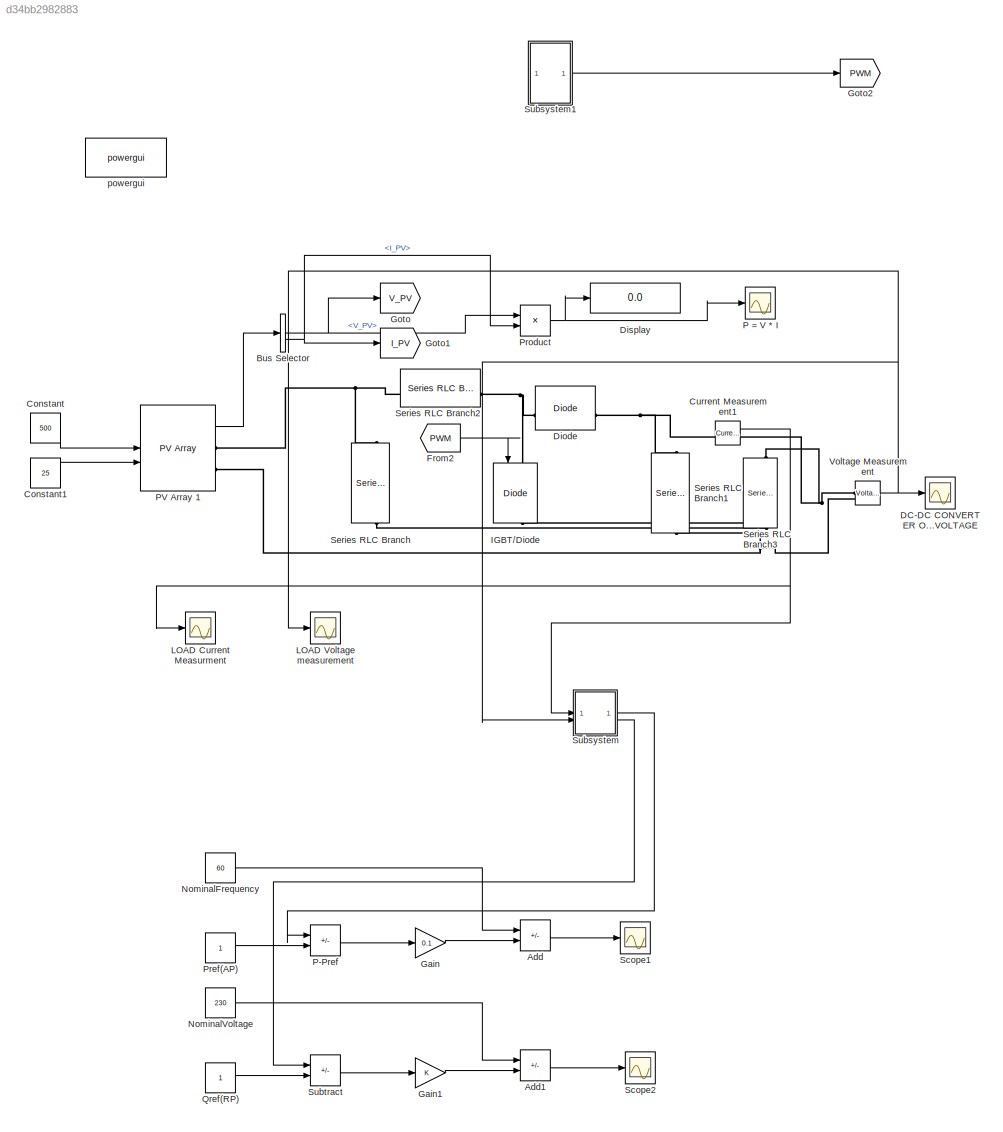
MODEL slx_d34bb2982883
KIND model
CONFIG AbsTol = auto
CONFIG EnableMultiTasking = off
CONFIG FixedStep = auto
CONFIG MaxStep = auto
CONFIG MinStep = auto
CONFIG RelTol = 1e-3
CONFIG SampleTimeConstraint = Unconstrained
CONFIG SolverName = ode23t
CONFIG StartTime = 0.0
CONFIG StopTime = 0.5
BLOCK [Sum] Add
  IconShape = rectangular
  Inputs = +-
BLOCK [Sum] Add1
  IconShape = rectangular
  Inputs = +-
BLOCK [BusSelector] Bus Selector
  OutputSignals = V_PV,I_PV
BLOCK [Constant] Constant
  Value = 500
BLOCK [Constant] Constant1
  Value = 25
BLOCK [Reference] Current Measurement1  REF=spsCurrentMeasurementLib/Current Measurement
  LibrarySourceBlock = sps_lib/Sensors and Measurements/Current Measurement
  SourceBlock = spsCurrentMeasurementLib/Current Measurement
  SourceType = Current Measurement
  UserDataPersistent = on
BLOCK [Scope] DC-DC CONVERTER OUTPUT VOLTAGE
  Floating = off
  NumInputPorts = 1
  ScopeSpecificationString = Simulink.scopes.TimeScopeBlockCfg('CurrentConfiguration', extmgr.ConfigurationSet(extmgr.Configuration('Core','General UI',true),extmgr.Configuration('Core','Source UI',true),extmgr.Configuration('Sources','WiredSimulink',true,'DataLoggingVariableName','ScopeData2'),extmgr.Configuration('Visuals','Time Domain',true,'SerializedDisplays',{struct('MinYLimReal','-39.75726','MaxYLimReal','357.81538','Y...<+1538ch>
BLOCK [Reference] Diode  REF=spsDiodeLib/Diode
  LibrarySourceBlock = sps_lib/Power Electronics/Diode
  SourceBlock = spsDiodeLib/Diode
  SourceType = Diode
BLOCK [Display] Display
  Decimation = 1
BLOCK [From] From2
  GotoTag = PWM
BLOCK [Gain] Gain
  Gain = 0.1
BLOCK [Gain] Gain1
BLOCK [Goto] Goto
  GotoTag = V_PV
BLOCK [Goto] Goto1
  GotoTag = I_PV
BLOCK [Goto] Goto2
  GotoTag = PWM
BLOCK [Reference] IGBT//Diode  REF=spsIGBTDiodeLib/IGBT//Diode
  NameLocation = left
  SourceBlock = spsIGBTDiodeLib/IGBT//Diode
  SourceType = IGBT/Diode
BLOCK [Scope] LOAD Current Measurment 
  Floating = off
  NumInputPorts = 1
  ScopeSpecificationString = Simulink.scopes.TimeScopeBlockCfg('CurrentConfiguration', extmgr.ConfigurationSet(extmgr.Configuration('Core','General UI',true),extmgr.Configuration('Core','Source UI',true),extmgr.Configuration('Sources','WiredSimulink',true,'DataLoggingVariableName','ScopeData1'),extmgr.Configuration('Visuals','Time Domain',true,'SerializedDisplays',{struct('MinYLimReal','-19.87863','MaxYLimReal','178.90769','Y...<+1539ch>
BLOCK [Scope] LOAD Voltage measurement
  Floating = off
  NumInputPorts = 1
  ScopeSpecificationString = Simulink.scopes.TimeScopeBlockCfg('CurrentConfiguration', extmgr.ConfigurationSet(extmgr.Configuration('Core','General UI',true),extmgr.Configuration('Core','Source UI',true),extmgr.Configuration('Sources','WiredSimulink',true,'DataLoggingVariableName','ScopeData1'),extmgr.Configuration('Visuals','Time Domain',true),extmgr.Configuration('Tools','Plot Navigation',true),extmgr.Configuration('Tools',...<+40ch>
BLOCK [Constant] NominalFrequency 
  Value = 60
BLOCK [Constant] NominalVoltage
  Value = 230
BLOCK [Scope] P = V * I 
  Floating = off
  NumInputPorts = 1
  ScopeSpecificationString = Simulink.scopes.TimeScopeBlockCfg('CurrentConfiguration', extmgr.ConfigurationSet(extmgr.Configuration('Core','General UI',true),extmgr.Configuration('Core','Source UI',true),extmgr.Configuration('Sources','WiredSimulink',true),extmgr.Configuration('Visuals','Time Domain',true,'SerializedDisplays',{struct('MinYLimReal','-6428.97607','MaxYLimReal','58073.00094','YLabelReal','','MinYLimMag','  0.000...<+1505ch>
BLOCK [Sum] P-Pref
  IconShape = rectangular
  Inputs = --
BLOCK [Reference] PV Array 1  REF=spsPVArrayLib/PV Array
  LibrarySourceBlock = sps_lib/Sources/PV Array
  SourceBlock = spsPVArrayLib/PV Array
  SourceType = PV array
BLOCK [Constant] Pref(AP)
BLOCK [Product] Product
BLOCK [Constant] Qref(RP)
BLOCK [Scope] Scope1
  Floating = off
  NumInputPorts = 1
  ScopeSpecificationString = Simulink.scopes.TimeScopeBlockCfg('CurrentConfiguration', extmgr.ConfigurationSet(extmgr.Configuration('Core','General UI',true),extmgr.Configuration('Core','Source UI',true),extmgr.Configuration('Sources','WiredSimulink',true,'DataLoggingVariableName','ScopeData5'),extmgr.Configuration('Visuals','Time Domain',true,'SerializedDisplays',{struct('MinYLimReal','60.09999999997','MaxYLimReal','60.10000...<+1543ch>
BLOCK [Scope] Scope2
  Floating = off
  NumInputPorts = 1
  ScopeSpecificationString = Simulink.scopes.TimeScopeBlockCfg('CurrentConfiguration', extmgr.ConfigurationSet(extmgr.Configuration('Core','General UI',true),extmgr.Configuration('Core','Source UI',true),extmgr.Configuration('Sources','WiredSimulink',true,'DataLoggingVariableName','ScopeData6'),extmgr.Configuration('Visuals','Time Domain',true,'SerializedDisplays',{struct('MinYLimReal','131.00000','MaxYLimReal','331.00000','Y...<+1530ch>
BLOCK [Reference] Series RLC Branch  REF=spsSeriesRLCBranchLib/Series RLC Branch
  LibrarySourceBlock = sps_lib/Passives/Series RLC Branch
  NameLocation = left
  SourceBlock = spsSeriesRLCBranchLib/Series RLC Branch
  SourceType = Series RLC Branch
BLOCK [Reference] Series RLC Branch1  REF=spsSeriesRLCBranchLib/Series RLC Branch
  LibrarySourceBlock = sps_lib/Passives/Series RLC Branch
  NameLocation = right
  SourceBlock = spsSeriesRLCBranchLib/Series RLC Branch
  SourceType = Series RLC Branch
BLOCK [Reference] Series RLC Branch2  REF=spsSeriesRLCBranchLib/Series RLC Branch
  LibrarySourceBlock = sps_lib/Passives/Series RLC Branch
  NameLocation = top
  SourceBlock = spsSeriesRLCBranchLib/Series RLC Branch
  SourceType = Series RLC Branch
BLOCK [Reference] Series RLC Branch3  REF=spsSeriesRLCBranchLib/Series RLC Branch
  LibrarySourceBlock = sps_lib/Passives/Series RLC Branch
  NameLocation = right
  SourceBlock = spsSeriesRLCBranchLib/Series RLC Branch
  SourceType = Series RLC Branch
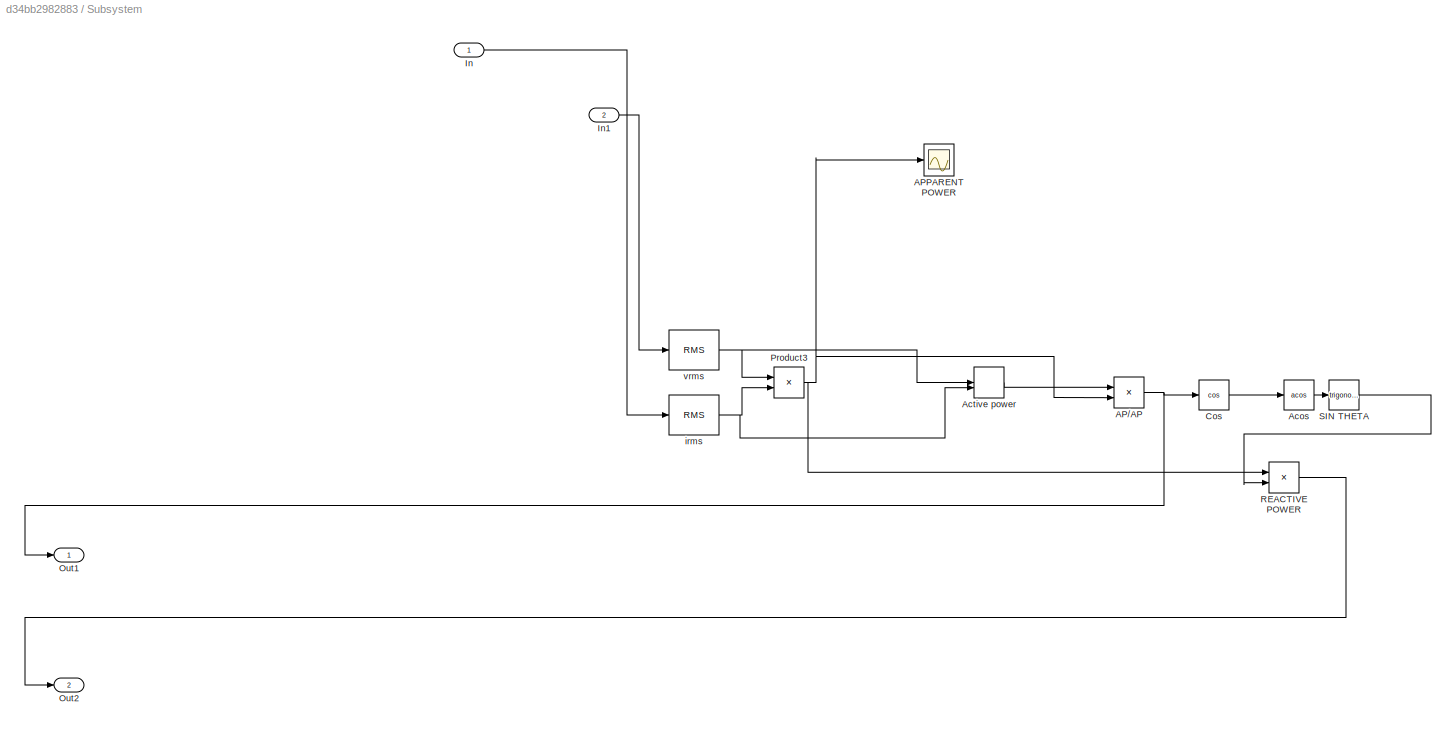
BLOCK [SubSystem] Subsystem
BLOCK [Product] Subsystem/AP//AP
  Inputs = //
BLOCK [Scope] Subsystem/APPARENT POWER
  Floating = off
  NumInputPorts = 1
  ScopeSpecificationString = Simulink.scopes.TimeScopeBlockCfg('CurrentConfiguration', extmgr.ConfigurationSet(extmgr.Configuration('Core','General UI',true),extmgr.Configuration('Core','Source UI',true),extmgr.Configuration('Sources','WiredSimulink',true,'DataLoggingVariableName','ScopeData3'),extmgr.Configuration('Visuals','Time Domain',true),extmgr.Configuration('Tools','Plot Navigation',true),extmgr.Configuration('Tools',...<+40ch>
BLOCK [Trigonometry] Subsystem/Acos
  Operator = acos
BLOCK [DotProduct] Subsystem/Active power
  OutDataTypeStr = Inherit: Inherit via internal rule
BLOCK [Trigonometry] Subsystem/Cos
  Operator = cos
BLOCK [Inport] Subsystem/In
BLOCK [Inport] Subsystem/In1
  Port = 2
BLOCK [Outport] Subsystem/Out1
BLOCK [Outport] Subsystem/Out2
  Port = 2
BLOCK [Product] Subsystem/Product3
BLOCK [Product] Subsystem/REACTIVE POWER
BLOCK [Trigonometry] Subsystem/SIN THETA
BLOCK [Reference] Subsystem/irms  REF=spsRMSLib/RMS
  LibrarySourceBlock = sps_lib/Sensors and Measurements/RMS
  SourceBlock = spsRMSLib/RMS
  SourceType = RMS
BLOCK [Reference] Subsystem/vrms  REF=spsRMSLib/RMS
  LibrarySourceBlock = sps_lib/Sensors and Measurements/RMS
  SourceBlock = spsRMSLib/RMS
  SourceType = RMS
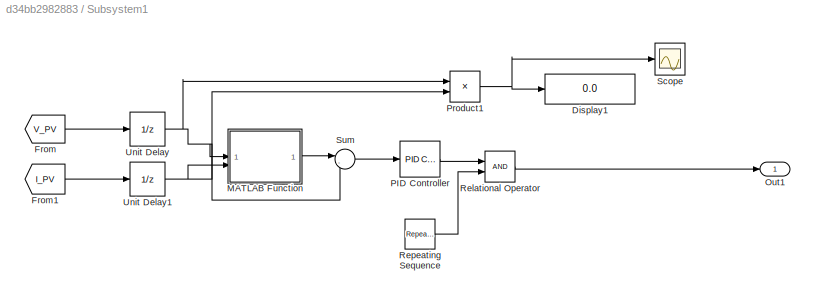
BLOCK [SubSystem] Subsystem1
BLOCK [Display] Subsystem1/Display1
  Decimation = 1
BLOCK [From] Subsystem1/From
  GotoTag = V_PV
BLOCK [From] Subsystem1/From1
  GotoTag = I_PV
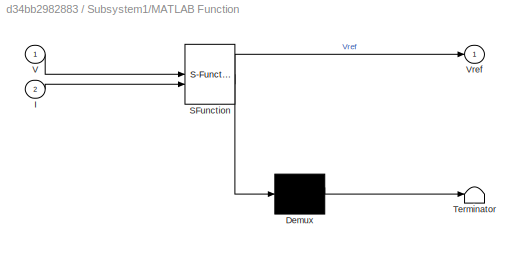
BLOCK [SubSystem] Subsystem1/MATLAB Function
  ErrorFcn = Stateflow.Translate.translate
  PermitHierarchicalResolution = ExplicitOnly
  SFBlockType = MATLAB Function
  TreatAsAtomicUnit = on
BLOCK [Demux] Subsystem1/MATLAB Function/ Demux 
  Outputs = 1
BLOCK [S-Function] Subsystem1/MATLAB Function/ SFunction 
  EnableBusSupport = on
  FunctionName = sf_sfun
  PortCounts = [2 2]
  SFcnIsStateOwnerBlock = off
  SFunctionDeploymentMode = off
  Tag = Stateflow S-Function 2
BLOCK [Terminator] Subsystem1/MATLAB Function/ Terminator 
BLOCK [Inport] Subsystem1/MATLAB Function/I
  Port = 2
BLOCK [Inport] Subsystem1/MATLAB Function/V
BLOCK [Outport] Subsystem1/MATLAB Function/Vref
BLOCK [Outport] Subsystem1/Out1
BLOCK [Reference] Subsystem1/PID Controller  REF=slpidlib/PID Controller
  LibrarySourceBlock = simulink/Continuous/PID Controller
  SourceBlock = slpidlib/PID Controller
  SourceType = PID 1dof
BLOCK [Product] Subsystem1/Product1
BLOCK [RelationalOperator] Subsystem1/Relational Operator
  InputSameDT = off
  OutDataTypeStr = boolean
  RndMeth = Simplest
BLOCK [Reference] Subsystem1/Repeating Sequence  REF=simulink/Sources/Repeating
Sequence
  SourceBlock = simulink/Sources/Repeating\nSequence
  SourceType = Repeating table
BLOCK [Scope] Subsystem1/Scope
  Floating = off
  NumInputPorts = 1
  ScopeSpecificationString = Simulink.scopes.TimeScopeBlockCfg('CurrentConfiguration', extmgr.ConfigurationSet(extmgr.Configuration('Core','General UI',true),extmgr.Configuration('Core','Source UI',true),extmgr.Configuration('Sources','WiredSimulink',true,'DataLoggingVariableName','ScopeData1'),extmgr.Configuration('Visuals','Time Domain',true,'SerializedDisplays',{struct('MinYLimReal','-1.00000','MaxYLimReal','1.00000','YLab...<+1520ch>
BLOCK [Sum] Subsystem1/Sum
  Inputs = |-+
BLOCK [UnitDelay] Subsystem1/Unit Delay
  HasFrameUpgradeWarning = on
  SampleTime = 1e-4
BLOCK [UnitDelay] Subsystem1/Unit Delay1
  HasFrameUpgradeWarning = on
  SampleTime = 1e-4
BLOCK [Sum] Subtract
  IconShape = rectangular
  Inputs = --
BLOCK [Reference] Voltage Measurement  REF=spsVoltageMeasurementLib/Voltage Measurement
  LibrarySourceBlock = sps_lib/Sensors and Measurements/Voltage Measurement
  SourceBlock = spsVoltageMeasurementLib/Voltage Measurement
  SourceType = Voltage Measurement
  UserDataPersistent = on
BLOCK [Reference] powergui  REF=sps_lib/powergui
  LibrarySourceBlock = sps_lib/powergui
  Priority = 1
  SourceBlock = sps_lib/powergui
  SourceType = PSB option menu block
LINE Add1:1 -> Scope2:1
LINE Add:1 -> Scope1:1
NET Bus Selector:1 -> Goto:1, Product:1
NET Bus Selector:2 -> Goto1:1, Product:2
LINE Constant1:1 -> PV Array 1:2
LINE Constant:1 -> PV Array 1:1
NET Current Measurement1:1 -> LOAD Current Measurment :1, Subsystem:1
LINE From2:1 -> IGBT//Diode:1
LINE Gain1:1 -> Add1:2
LINE Gain:1 -> Add:2
LINE NominalFrequency :1 -> Add:1
LINE NominalVoltage:1 -> Add1:1
LINE P-Pref:1 -> Gain:1
LINE PV Array 1:1 -> Bus Selector:1
LINE Pref(AP):1 -> P-Pref:2
NET Product:1 -> Display:1, P = V * I :1
LINE Qref(RP):1 -> Subtract:2
NET Subsystem/AP//AP:1 -> Subsystem/Cos:1, Subsystem/Out1:1
LINE Subsystem/Acos:1 -> Subsystem/SIN THETA:1
LINE Subsystem/Active power:1 -> Subsystem/AP//AP:1
LINE Subsystem/Cos:1 -> Subsystem/Acos:1
LINE Subsystem/In1:1 -> Subsystem/vrms:1
LINE Subsystem/In:1 -> Subsystem/irms:1
NET Subsystem/Product3:1 -> Subsystem/AP//AP:2, Subsystem/APPARENT POWER:1, Subsystem/REACTIVE POWER:1
LINE Subsystem/REACTIVE POWER:1 -> Subsystem/Out2:1
LINE Subsystem/SIN THETA:1 -> Subsystem/REACTIVE POWER:2
NET Subsystem/irms:1 -> Subsystem/Active power:2, Subsystem/Product3:2
NET Subsystem/vrms:1 -> Subsystem/Active power:1, Subsystem/Product3:1
LINE Subsystem1/From1:1 -> Subsystem1/Unit Delay1:1
LINE Subsystem1/From:1 -> Subsystem1/Unit Delay:1
LINE Subsystem1/MATLAB Function:1 -> Subsystem1/Sum:1
LINE Subsystem1/PID Controller:1 -> Subsystem1/Relational Operator:1
NET Subsystem1/Product1:1 -> Subsystem1/Display1:1, Subsystem1/Scope:1
LINE Subsystem1/Relational Operator:1 -> Subsystem1/Out1:1
LINE Subsystem1/Repeating Sequence:1 -> Subsystem1/Relational Operator:2
LINE Subsystem1/Sum:1 -> Subsystem1/PID Controller:1
NET Subsystem1/Unit Delay1:1 -> Subsystem1/MATLAB Function:2, Subsystem1/Product1:2
NET Subsystem1/Unit Delay:1 -> Subsystem1/MATLAB Function:1, Subsystem1/Product1:1, Subsystem1/Sum:2
LINE Subsystem1:1 -> Goto2:1
LINE Subsystem:1 -> P-Pref:1
LINE Subsystem:2 -> Subtract:1
LINE Subtract:1 -> Gain1:1
NET Voltage Measurement:1 -> DC-DC CONVERTER OUTPUT VOLTAGE:1, LOAD Voltage measurement:1, Subsystem:2
PNET net1: Current Measurement1:LConn1 -- Diode:RConn1 -- Series RLC Branch1:RConn1
PNET net2: Current Measurement1:RConn1 -- Series RLC Branch3:RConn1 -- Voltage Measurement:LConn1
PNET net3: Diode:LConn1 -- IGBT//Diode:LConn1 -- Series RLC Branch2:LConn1
PNET net4: IGBT//Diode:RConn1 -- PV Array 1:RConn2 -- Series RLC Branch1:LConn1 -- Series RLC Branch3:LConn1 -- Series RLC Branch:RConn1 -- Voltage Measurement:LConn2
PNET net5: PV Array 1:RConn1 -- Series RLC Branch2:RConn1 -- Series RLC Branch:LConn1
note: NET lines group one-source signal fan-out (src -> all destinations, sorted); 1:1 wires keep LINE; PNET lines group multi-terminal physical nets as a canonical sorted terminal list (undirected conserving connections); 2-terminal nets keep the pairwise PLINE form
CHART Subsystem1/MATLAB Function states=1 transitions=1
  STATE_LABEL 'eML_blk_kernel()'
  STATE_LABEL "SCRIPT:\nfunction Vref = RefGen(V, I)\n    % Define constants\n    Vrefmax = 363;\n    Vrefmin = 0;\n    Vrefinit = 300;\n    deltaVref = 1;\n    \n    % Define data type for code generation\n    dataType = 'double';\n    \n    % Initialize persistent variables\n    persistent Vold Pold Vrefold;\n    if isempty(Vold)\n        Vold = 0;\n        Pold = 0;\n        Vrefold = Vrefinit;\n    end\n    \n    % Calculate c...<+1127ch>"
CHART  states=0 transitions=0
